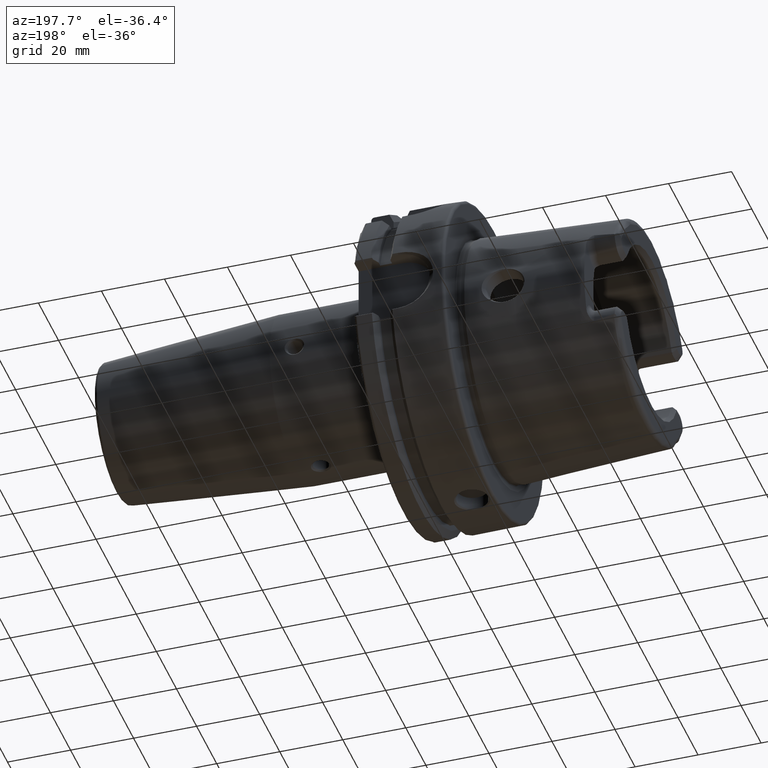
[diagram: clean part render]
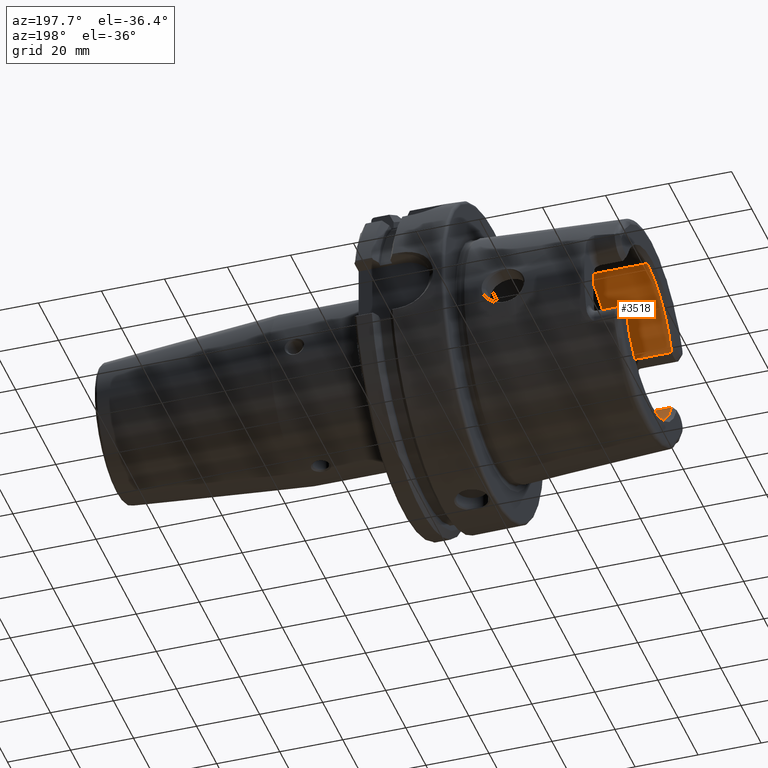
[diagram: same view with one face highlighted and labeled with its STEP entity id]
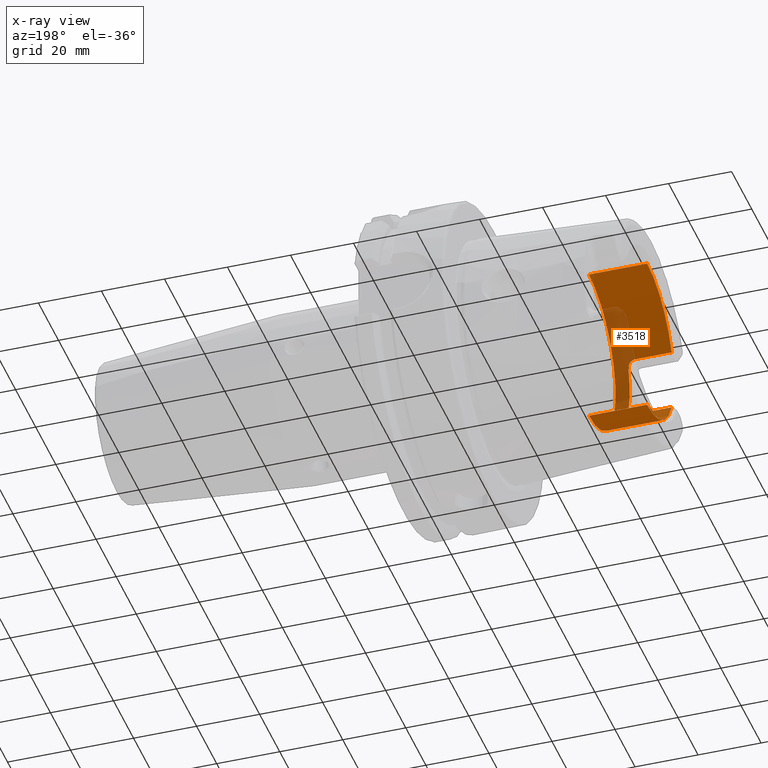
[diagram: x-ray of the same camera — body ghosted, the highlighted face saturated]
A machine part, auxiliary view. The second image highlights one B-rep face of the part: STEP entity #3518.
The next image is the same camera in x-ray: the body ghosted, the highlighted face saturated — about 26% of this face is hidden behind the body in this view.
In plain terms, the highlighted cylindrical surface (partial cylindrical patch) has radius 26.5 mm, axis along (1, 0, 0).
Its self-contained STEP definition (entity closure, byte-faithful):
#303=CARTESIAN_POINT('',(-4.85E1,0.E0,0.E0));
#304=DIRECTION('',(1.E0,0.E0,0.E0));
#305=DIRECTION('',(0.E0,-9.211282370446E-1,-3.892592592593E-1));
#306=AXIS2_PLACEMENT_3D('',#303,#304,#305);
#308=DIRECTION('',(-1.E0,-5.551588003877E-9,2.922803554237E-11));
#309=VECTOR('',#308,1.849662432609E1);
#310=CARTESIAN_POINT('',(-3.000337567297E1,0.E0,-2.65E1));
#311=LINE('',#310,#309);
#312=CARTESIAN_POINT('',(-3.000337567297E1,0.E0,0.E0));
#313=DIRECTION('',(1.E0,0.E0,0.E0));
#314=DIRECTION('',(0.E0,0.E0,1.E0));
#315=AXIS2_PLACEMENT_3D('',#312,#313,#314);
#317=DIRECTION('',(-1.E0,5.551588026347E-9,-2.922649895337E-11));
#318=VECTOR('',#317,1.849662432609E1);
#319=CARTESIAN_POINT('',(-3.000337567297E1,0.E0,2.65E1));
#320=LINE('',#319,#318);
#321=CARTESIAN_POINT('',(-4.85E1,0.E0,0.E0));
#322=DIRECTION('',(1.E0,0.E0,0.E0));
#323=DIRECTION('',(0.E0,0.E0,1.E0));
#324=AXIS2_PLACEMENT_3D('',#321,#322,#323);
#326=DIRECTION('',(-1.E0,3.226420120565E-11,5.697409734915E-11));
#327=VECTOR('',#326,1.149999991698E1);
#328=CARTESIAN_POINT('',(-3.700000008300E1,-2.440989828204E1,1.031537036972E1));
#329=LINE('',#328,#327);
#330=CARTESIAN_POINT('',(-3.449999998651E1,-2.530699846500E1,7.861668321341E0));
#331=CARTESIAN_POINT('',(-3.449795011958E1,-2.523759929115E1,8.085066857051E0));
#332=CARTESIAN_POINT('',(-3.456021542581E1,-2.509785564659E1,8.514631971724E0));
#333=CARTESIAN_POINT('',(-3.482630285811E1,-2.487849543461E1,9.134382792455E0));
#334=CARTESIAN_POINT('',(-3.524644241061E1,-2.468204294199E1,9.650097295361E0));
#335=CARTESIAN_POINT('',(-3.577785285832E1,-2.452731871794E1,1.003478934780E1));
#336=CARTESIAN_POINT('',(-3.638766783458E1,-2.443056876952E1,1.026668682524E1));
#337=CARTESIAN_POINT('',(-3.679311128597E1,-2.440929933694E1,1.031678769054E1));
#338=CARTESIAN_POINT('',(-3.700000008300E1,-2.440989828204E1,1.031537036972E1));
#340=CARTESIAN_POINT('',(-3.45E1,0.E0,0.E0));
#341=DIRECTION('',(-1.E0,0.E0,0.E0));
#342=DIRECTION('',(0.E0,-9.549810934720E-1,-2.966666666667E-1));
#343=AXIS2_PLACEMENT_3D('',#340,#341,#342);
#345=CARTESIAN_POINT('',(-3.700000016220E1,-2.440989828213E1,
-1.031537036967E1));
#346=CARTESIAN_POINT('',(-3.678858779585E1,-2.440959239456E1,
-1.031609421035E1));
#347=CARTESIAN_POINT('',(-3.637701059267E1,-2.443150404043E1,
-1.026447856370E1));
#348=CARTESIAN_POINT('',(-3.577240070331E1,-2.452879080341E1,
-1.003118157757E1));
#349=CARTESIAN_POINT('',(-3.524355850821E1,-2.468306308929E1,
-9.647504754595E0));
#350=CARTESIAN_POINT('',(-3.482283577083E1,-2.488050256782E1,
-9.128971951032E0));
#351=CARTESIAN_POINT('',(-3.455897743123E1,-2.509969767947E1,
-8.509135686152E0));
#352=CARTESIAN_POINT('',(-3.449793394971E1,-2.523831739929E1,
-8.082755236989E0));
#353=CARTESIAN_POINT('',(-3.449999999063E1,-2.530699864113E1,
-7.861667751238E0));
#355=DIRECTION('',(1.E0,-3.969833213848E-11,6.107856335907E-11));
#356=VECTOR('',#355,1.149999983779E1);
#357=CARTESIAN_POINT('',(-4.85E1,-2.440989828168E1,-1.031537037037E1));
#358=LINE('',#357,#356);
#2780=CARTESIAN_POINT('',(-3.000337567297E1,0.E0,-2.65E1));
#2781=CARTESIAN_POINT('',(-3.000337567297E1,0.E0,2.65E1));
#2782=VERTEX_POINT('',#2780);
#2783=VERTEX_POINT('',#2781);
#2971=VERTEX_POINT('',#330);
#2972=VERTEX_POINT('',#338);
#2975=CARTESIAN_POINT('',(-3.45E1,-2.530699897701E1,-7.861666666667E0));
#2976=VERTEX_POINT('',#2975);
#2979=VERTEX_POINT('',#345);
#2981=CARTESIAN_POINT('',(-4.85E1,0.E0,-2.65E1));
#2983=VERTEX_POINT('',#2981);
#2985=CARTESIAN_POINT('',(-4.85E1,-2.440989828168E1,-1.031537037037E1));
#2986=VERTEX_POINT('',#2985);
#2987=CARTESIAN_POINT('',(-4.85E1,0.E0,2.65E1));
#2988=CARTESIAN_POINT('',(-4.85E1,-2.440989828168E1,1.031537037037E1));
#2989=VERTEX_POINT('',#2987);
#2990=VERTEX_POINT('',#2988);
#3493=CARTESIAN_POINT('',(0.E0,0.E0,0.E0));
#3494=DIRECTION('',(1.E0,0.E0,0.E0));
#3495=DIRECTION('',(0.E0,0.E0,1.E0));
#3496=AXIS2_PLACEMENT_3D('',#3493,#3494,#3495);
#3497=CYLINDRICAL_SURFACE('',#3496,2.65E1);
#3499=ORIENTED_EDGE('',*,*,#3498,.T.);
#3500=ORIENTED_EDGE('',*,*,#3474,.F.);
#3502=ORIENTED_EDGE('',*,*,#3501,.F.);
#3503=ORIENTED_EDGE('',*,*,#3470,.T.);
#3505=ORIENTED_EDGE('',*,*,#3504,.T.);
#3507=ORIENTED_EDGE('',*,*,#3506,.F.);
#3509=ORIENTED_EDGE('',*,*,#3508,.F.);
#3511=ORIENTED_EDGE('',*,*,#3510,.F.);
#3513=ORIENTED_EDGE('',*,*,#3512,.F.);
#3515=ORIENTED_EDGE('',*,*,#3514,.F.);
#3516=EDGE_LOOP('',(#3499,#3500,#3502,#3503,#3505,#3507,#3509,#3511,#3513,
#3515));
#3517=FACE_OUTER_BOUND('',#3516,.F.);
#3518=ADVANCED_FACE('',(#3517),#3497,.F.);
#307=CIRCLE('',#306,2.65E1);
#316=CIRCLE('',#315,2.65E1);
#325=CIRCLE('',#324,2.65E1);
#339=B_SPLINE_CURVE_WITH_KNOTS('',3,(#330,#331,#332,#333,#334,#335,#336,#337,
#338),.UNSPECIFIED.,.F.,.F.,(4,1,1,1,1,1,4),(0.E0,1.666666666667E-1,
3.333333333333E-1,5.E-1,6.666666666667E-1,8.333333333333E-1,1.E0),
.UNSPECIFIED.);
#344=CIRCLE('',#343,2.65E1);
#354=B_SPLINE_CURVE_WITH_KNOTS('',3,(#345,#346,#347,#348,#349,#350,#351,#352,
#353),.UNSPECIFIED.,.F.,.F.,(4,1,1,1,1,1,4),(0.E0,1.666666666667E-1,
3.333333333333E-1,5.E-1,6.666666666667E-1,8.333333333333E-1,1.E0),
.UNSPECIFIED.);
#3470=EDGE_CURVE('',#2783,#2989,#320,.T.);
#3474=EDGE_CURVE('',#2782,#2983,#311,.T.);
#3498=EDGE_CURVE('',#2986,#2983,#307,.T.);
#3501=EDGE_CURVE('',#2783,#2782,#316,.T.);
#3504=EDGE_CURVE('',#2989,#2990,#325,.T.);
#3506=EDGE_CURVE('',#2972,#2990,#329,.T.);
#3508=EDGE_CURVE('',#2971,#2972,#339,.T.);
#3510=EDGE_CURVE('',#2976,#2971,#344,.T.);
#3512=EDGE_CURVE('',#2979,#2976,#354,.T.);
#3514=EDGE_CURVE('',#2986,#2979,#358,.T.);